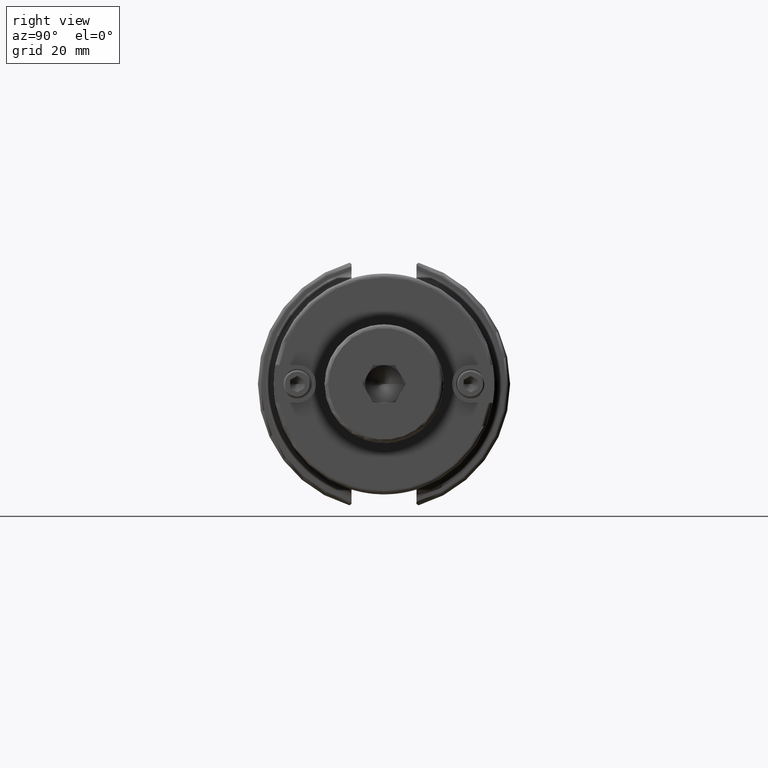
[diagram: clean part render]
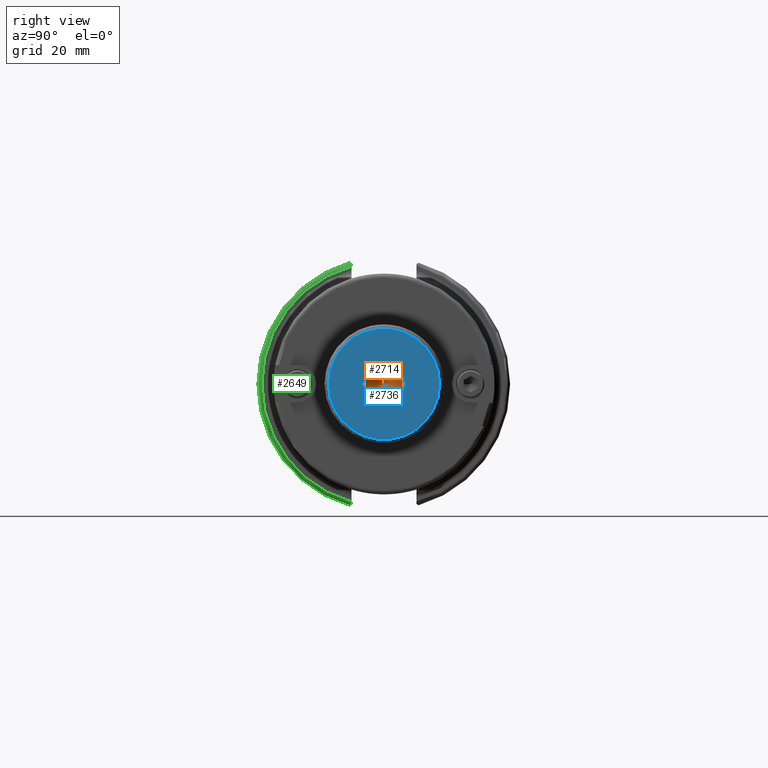
[diagram: same view with three faces highlighted in distinct colors, each labeled with its STEP entity id]
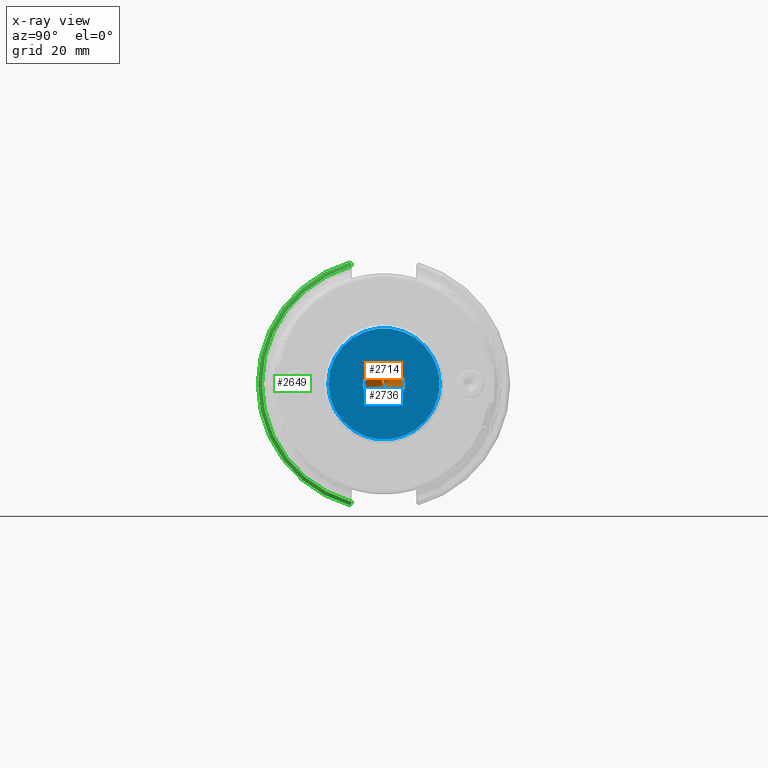
[diagram: x-ray of the same camera — body ghosted, the three highlighted faces saturated]
A machine part, right view with three faces highlighted in distinct colors.
The next image is the same camera in x-ray (body ghosted, the three faces saturated) — at least one of them is partly hidden behind the body in this view.
Their STEP definitions:

[orange] entity #2714 — the highlighted conical surface has half-angle 59 deg.
#133=CONICAL_SURFACE('',#3113,2.38125,1.02974425867665);
#364=FACE_OUTER_BOUND('',#542,.T.);
#542=EDGE_LOOP('',(#2434,#2435,#2436));
#687=CIRCLE('',#3114,4.7625);
#849=LINE('',#5165,#1017);
#1017=VECTOR('',#3858,2.38125);
#1317=VERTEX_POINT('',#5162);
#1318=VERTEX_POINT('',#5164);
#1694=EDGE_CURVE('',#1317,#1317,#687,.T.);
#1695=EDGE_CURVE('',#1317,#1318,#849,.T.);
#2434=ORIENTED_EDGE('',*,*,#1694,.T.);
#2435=ORIENTED_EDGE('',*,*,#1695,.T.);
#2436=ORIENTED_EDGE('',*,*,#1695,.F.);
#2714=ADVANCED_FACE('',(#364),#133,.F.);
#3113=AXIS2_PLACEMENT_3D('',#5161,#3854,#3855);
#3114=AXIS2_PLACEMENT_3D('',#5163,#3856,#3857);
#3854=DIRECTION('center_axis',(-1.,0.,0.));
#3855=DIRECTION('ref_axis',(0.,0.,1.));
#3856=DIRECTION('center_axis',(-1.,0.,0.));
#3857=DIRECTION('ref_axis',(0.,0.,1.));
#3858=DIRECTION('',(0.515038074910054,1.04972719113862E-16,0.857167300702112));
#5161=CARTESIAN_POINT('Origin',(9.43079934905938,0.,0.));
#5162=CARTESIAN_POINT('',(8.,-5.83238038093927E-16,-4.7625));
#5163=CARTESIAN_POINT('Origin',(8.,0.,0.));
#5164=CARTESIAN_POINT('',(10.8615986981188,0.,0.));
#5165=CARTESIAN_POINT('',(9.43079934905938,-2.91619019046964E-16,-2.38125));

[blue] entity #2736 — the highlighted planar face has unit normal (1, 0, -0).
#159=FACE_BOUND('',#566,.T.);
#231=PLANE('',#3158);
#386=FACE_OUTER_BOUND('',#565,.T.);
#565=EDGE_LOOP('',(#2531));
#566=EDGE_LOOP('',(#2532,#2533,#2534,#2535,#2536,#2537));
#709=CIRCLE('',#3157,14.);
#863=LINE('',#5209,#1031);
#866=LINE('',#5214,#1034);
#868=LINE('',#5218,#1036);
#870=LINE('',#5222,#1038);
#872=LINE('',#5226,#1040);
#874=LINE('',#5229,#1042);
#1031=VECTOR('',#3902,10.);
#1034=VECTOR('',#3907,10.);
#1036=VECTOR('',#3911,10.);
#1038=VECTOR('',#3915,10.);
#1040=VECTOR('',#3919,10.);
#1042=VECTOR('',#3923,10.);
#1332=VERTEX_POINT('',#5207);
#1333=VERTEX_POINT('',#5208);
#1334=VERTEX_POINT('',#5213);
#1335=VERTEX_POINT('',#5217);
#1336=VERTEX_POINT('',#5221);
#1337=VERTEX_POINT('',#5225);
#1349=VERTEX_POINT('',#5265);
#1716=EDGE_CURVE('',#1332,#1333,#863,.T.);
#1719=EDGE_CURVE('',#1334,#1332,#866,.T.);
#1721=EDGE_CURVE('',#1335,#1334,#868,.T.);
#1723=EDGE_CURVE('',#1336,#1335,#870,.T.);
#1725=EDGE_CURVE('',#1337,#1336,#872,.T.);
#1727=EDGE_CURVE('',#1333,#1337,#874,.T.);
#1745=EDGE_CURVE('',#1349,#1349,#709,.T.);
#2531=ORIENTED_EDGE('',*,*,#1745,.F.);
#2532=ORIENTED_EDGE('',*,*,#1716,.T.);
#2533=ORIENTED_EDGE('',*,*,#1727,.T.);
#2534=ORIENTED_EDGE('',*,*,#1725,.T.);
#2535=ORIENTED_EDGE('',*,*,#1723,.T.);
#2536=ORIENTED_EDGE('',*,*,#1721,.T.);
#2537=ORIENTED_EDGE('',*,*,#1719,.T.);
#2736=ADVANCED_FACE('',(#386,#159),#231,.T.);
#3157=AXIS2_PLACEMENT_3D('',#5267,#3971,#3972);
#3158=AXIS2_PLACEMENT_3D('',#5268,#3973,#3974);
#3902=DIRECTION('',(0.,0.866025403784439,0.499999999999999));
#3907=DIRECTION('',(0.,0.866025403784438,-0.500000000000001));
#3911=DIRECTION('',(0.,-7.06600462188186E-16,-1.));
#3915=DIRECTION('',(0.,-0.866025403784439,-0.5));
#3919=DIRECTION('',(0.,-0.866025403784438,0.500000000000001));
#3923=DIRECTION('',(0.,1.21131507803689E-15,1.));
#3971=DIRECTION('center_axis',(1.,0.,0.));
#3972=DIRECTION('ref_axis',(0.,-1.,1.83697019872103E-16));
#3973=DIRECTION('center_axis',(-1.,0.,0.));
#3974=DIRECTION('ref_axis',(0.,0.,1.));
#5207=CARTESIAN_POINT('',(0.,-8.82348337528734E-15,-5.49926131403118));
#5208=CARTESIAN_POINT('',(0.,4.76249999999999,-2.7496306570156));
#5209=CARTESIAN_POINT('',(0.,6.815625,-1.56425838558565));
#5213=CARTESIAN_POINT('',(0.,-4.7625,-2.74963065701559));
#5214=CARTESIAN_POINT('',(0.,2.05312499999999,-6.68463358546114));
#5217=CARTESIAN_POINT('',(0.,-4.7625,2.7496306570156));
#5218=CARTESIAN_POINT('',(0.,-4.7625,1.3748153285078));
#5221=CARTESIAN_POINT('',(0.,-6.68923485257748E-16,5.49926131403119));
#5222=CARTESIAN_POINT('',(0.,4.434375,8.05944891396893));
#5225=CARTESIAN_POINT('',(0.,4.7625,2.74963065701559));
#5226=CARTESIAN_POINT('',(0.,9.196875,0.189443057077837));
#5229=CARTESIAN_POINT('',(0.,4.7625,-1.37481532850779));
#5265=CARTESIAN_POINT('',(0.,-1.71450551880629E-15,14.));
#5267=CARTESIAN_POINT('Origin',(0.,0.,0.));
#5268=CARTESIAN_POINT('Origin',(0.,15.,0.));

[green] entity #2649 — the highlighted toroidal blend (fillet) surface has major radius 30.75 mm and minor (blend) radius 1 mm.
#103=TOROIDAL_SURFACE('',#2997,30.75,1.);
#299=FACE_OUTER_BOUND('',#466,.T.);
#466=EDGE_LOOP('',(#2105,#2106,#2107,#2108,#2109,#2110));
#611=CIRCLE('',#2920,30.75);
#639=CIRCLE('',#2998,31.75);
#1077=B_SPLINE_CURVE_WITH_KNOTS('',3,(#4777,#4778,#4779,#4780,#4781,#4782),
 .UNSPECIFIED.,.F.,.F.,(4,2,4),(0.097738363091569,0.112311108149119,0.150804350305566),
 .UNSPECIFIED.);
#1078=B_SPLINE_CURVE_WITH_KNOTS('',3,(#4784,#4785,#4786,#4787,#4788,#4789),
 .UNSPECIFIED.,.F.,.F.,(4,2,4),(0.452741154494497,0.491581665024871,0.505824174364156),
 .UNSPECIFIED.);
#1079=B_SPLINE_CURVE_WITH_KNOTS('',3,(#4791,#4792,#4793,#4794,#4795,#4796,
#4797,#4798),.UNSPECIFIED.,.F.,.F.,(4,2,2,4),(-0.104180282751877,-0.0729784742461446,
-0.0343524753874984,0.),.UNSPECIFIED.);
#1080=B_SPLINE_CURVE_WITH_KNOTS('',3,(#4801,#4802,#4803,#4804,#4805,#4806,
#4807,#4808),.UNSPECIFIED.,.F.,.F.,(4,2,2,4),(0.,0.0343524753874978,0.0729784742461449,
0.104180282751877),.UNSPECIFIED.);
#1157=VERTEX_POINT('',#4366);
#1158=VERTEX_POINT('',#4368);
#1234=VERTEX_POINT('',#4776);
#1235=VERTEX_POINT('',#4783);
#1236=VERTEX_POINT('',#4790);
#1237=VERTEX_POINT('',#4799);
#1449=EDGE_CURVE('',#1158,#1157,#611,.T.);
#1556=EDGE_CURVE('',#1234,#1158,#1077,.T.);
#1557=EDGE_CURVE('',#1157,#1235,#1078,.T.);
#1558=EDGE_CURVE('',#1235,#1236,#1079,.T.);
#1559=EDGE_CURVE('',#1236,#1237,#639,.T.);
#1560=EDGE_CURVE('',#1237,#1234,#1080,.T.);
#2105=ORIENTED_EDGE('',*,*,#1556,.T.);
#2106=ORIENTED_EDGE('',*,*,#1449,.T.);
#2107=ORIENTED_EDGE('',*,*,#1557,.T.);
#2108=ORIENTED_EDGE('',*,*,#1558,.T.);
#2109=ORIENTED_EDGE('',*,*,#1559,.T.);
#2110=ORIENTED_EDGE('',*,*,#1560,.T.);
#2649=ADVANCED_FACE('',(#299),#103,.T.);
#2920=AXIS2_PLACEMENT_3D('',#4369,#3370,#3371);
#2997=AXIS2_PLACEMENT_3D('',#4775,#3558,#3559);
#2998=AXIS2_PLACEMENT_3D('',#4800,#3560,#3561);
#3370=DIRECTION('center_axis',(-1.,0.,0.));
#3371=DIRECTION('ref_axis',(0.,-1.,1.60812264967664E-16));
#3558=DIRECTION('center_axis',(1.,0.,0.));
#3559=DIRECTION('ref_axis',(0.,0.,-1.));
#3560=DIRECTION('center_axis',(1.,0.,0.));
#3561=DIRECTION('ref_axis',(0.,-1.,1.60812264967664E-16));
#4366=CARTESIAN_POINT('',(19.05,-8.19,29.6392712461019));
#4368=CARTESIAN_POINT('',(19.05,-8.19,-29.6392712461019));
#4369=CARTESIAN_POINT('Origin',(19.05,0.,0.));
#4775=CARTESIAN_POINT('Origin',(18.05,0.,0.));
#4776=CARTESIAN_POINT('',(18.9058722749097,-8.19,-30.1755016258903));
#4777=CARTESIAN_POINT('Ctrl Pts',(18.9058722749097,-8.19,-30.1755016258903));
#4778=CARTESIAN_POINT('Ctrl Pts',(18.9324477233044,-8.19,-30.1299319366157));
#4779=CARTESIAN_POINT('Ctrl Pts',(18.9550700364447,-8.19,-30.0829389905409));
#4780=CARTESIAN_POINT('Ctrl Pts',(19.0210043632013,-8.19,-29.9188002007263));
#4781=CARTESIAN_POINT('Ctrl Pts',(19.05,-8.19,-29.76758205329));
#4782=CARTESIAN_POINT('Ctrl Pts',(19.05,-8.19,-29.6392712461019));
#4783=CARTESIAN_POINT('',(18.9058722749097,-8.19,30.1755016258903));
#4784=CARTESIAN_POINT('Ctrl Pts',(19.05,-8.19,29.6392712461019));
#4785=CARTESIAN_POINT('Ctrl Pts',(19.05,-8.19,29.7687396145364));
#4786=CARTESIAN_POINT('Ctrl Pts',(19.0204855670831,-8.19,29.9212724384851));
#4787=CARTESIAN_POINT('Ctrl Pts',(18.9539643471756,-8.19,30.0852355256475));
#4788=CARTESIAN_POINT('Ctrl Pts',(18.9318163728133,-8.19,30.131014531546));
#4789=CARTESIAN_POINT('Ctrl Pts',(18.9058722749097,-8.19,30.1755016258903));
#4790=CARTESIAN_POINT('',(18.05,-8.67204822802685,30.5427254764662));
#4791=CARTESIAN_POINT('Ctrl Pts',(18.9058722749097,-8.19,30.1755016258903));
#4792=CARTESIAN_POINT('Ctrl Pts',(18.8574463042989,-8.2703682833078,30.2367261024977));
#4793=CARTESIAN_POINT('Ctrl Pts',(18.7926702662319,-8.34909446036477,30.2966996242308));
#4794=CARTESIAN_POINT('Ctrl Pts',(18.6396724190507,-8.48862804755884,30.4029961692546));
#4795=CARTESIAN_POINT('Ctrl Pts',(18.5184414294771,-8.56482138642532,30.4610401774263));
#4796=CARTESIAN_POINT('Ctrl Pts',(18.2983170433775,-8.6471881193939,30.5237870709558));
#4797=CARTESIAN_POINT('Ctrl Pts',(18.1645082512917,-8.67204822802685,30.5427254764662));
#4798=CARTESIAN_POINT('Ctrl Pts',(18.05,-8.67204822802685,30.5427254764662));
#4799=CARTESIAN_POINT('',(18.05,-8.67204822802686,-30.5427254764662));
#4800=CARTESIAN_POINT('Origin',(18.05,0.,0.));
#4801=CARTESIAN_POINT('Ctrl Pts',(18.05,-8.67204822802685,-30.5427254764662));
#4802=CARTESIAN_POINT('Ctrl Pts',(18.1645082512917,-8.67204822802685,-30.5427254764662));
#4803=CARTESIAN_POINT('Ctrl Pts',(18.2983170433775,-8.6471881193939,-30.5237870709558));
#4804=CARTESIAN_POINT('Ctrl Pts',(18.5184414294771,-8.56482138642532,-30.4610401774263));
#4805=CARTESIAN_POINT('Ctrl Pts',(18.6396724190507,-8.48862804755883,-30.4029961692546));
#4806=CARTESIAN_POINT('Ctrl Pts',(18.7926702662319,-8.34909446036477,-30.2966996242308));
#4807=CARTESIAN_POINT('Ctrl Pts',(18.8574463042989,-8.2703682833078,-30.2367261024977));
#4808=CARTESIAN_POINT('Ctrl Pts',(18.9058722749097,-8.19,-30.1755016258903));